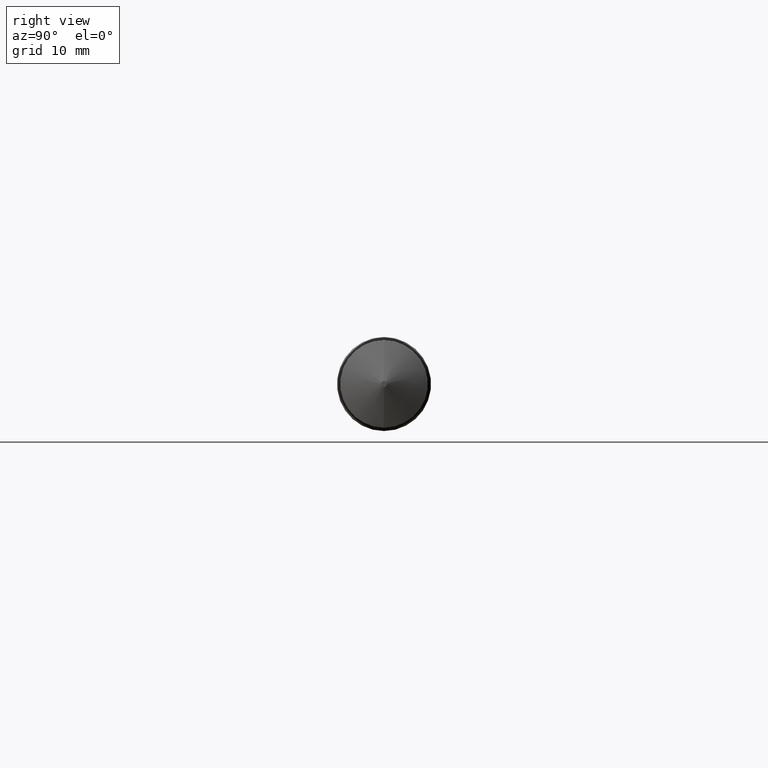
[diagram: clean part render]
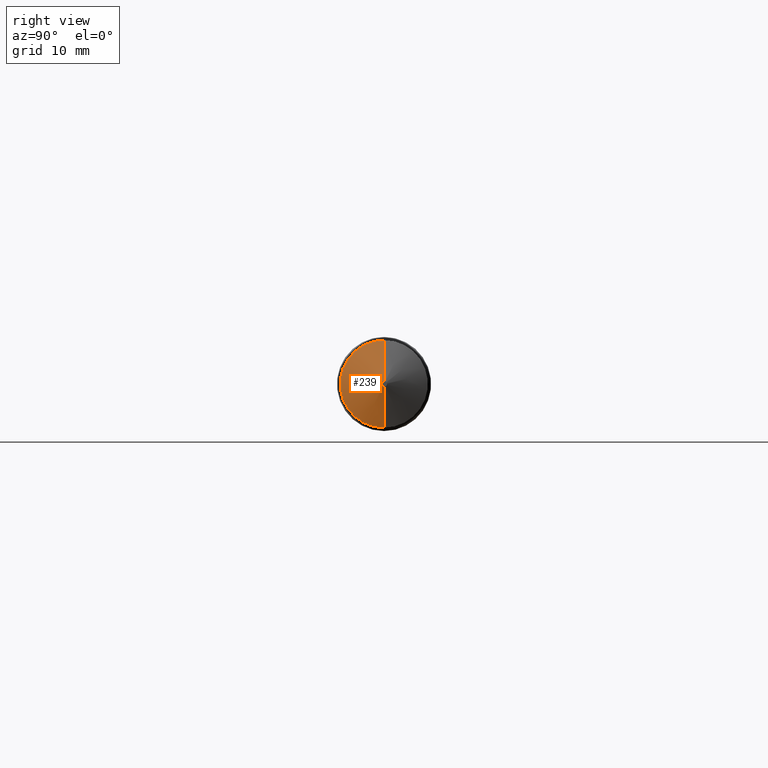
[diagram: same view with one face highlighted and labeled with its STEP entity id]
A machine part, right view. The second image highlights one B-rep face of the part: STEP entity #239.
In plain terms, the highlighted conical surface has half-angle 70 deg.
Its self-contained STEP definition (entity closure, byte-faithful):
#25 = ORIENTED_EDGE ( 'NONE', *, *, #258, .F. ) ;
#28 = ORIENTED_EDGE ( 'NONE', *, *, #355, .F. ) ;
#30 = EDGE_LOOP ( 'NONE', ( #25, #28, #324, #113 ) ) ;
#37 = DIRECTION ( 'NONE',  ( 1.000000000000000000, -0.000000000000000000, -0.000000000000000000 ) ) ;
#44 = CARTESIAN_POINT ( 'NONE',  ( 4.212598425196850016, 0.000000000000000000, 0.01750000000000052208 ) ) ;
#49 = VERTEX_POINT ( 'NONE', #206 ) ;
#54 = AXIS2_PLACEMENT_3D ( 'NONE', #213, #309, #74 ) ;
#59 = EDGE_CURVE ( 'NONE', #49, #168, #100, .T. ) ;
#74 = DIRECTION ( 'NONE',  ( 0.000000000000000000, 0.000000000000000000, 1.000000000000000000 ) ) ;
#76 = EDGE_CURVE ( 'NONE', #257, #49, #202, .T. ) ;
#89 = AXIS2_PLACEMENT_3D ( 'NONE', #151, #37, #94 ) ;
#93 = CARTESIAN_POINT ( 'NONE',  ( 4.212598425196850016, 0.000000000000000000, 0.01750000000000052208 ) ) ;
#94 = DIRECTION ( 'NONE',  ( 0.000000000000000000, 0.000000000000000000, -1.000000000000000000 ) ) ;
#100 = CIRCLE ( 'NONE', #89, 0.2565000000000005054 ) ;
#104 = VECTOR ( 'NONE', #152, 39.37007874015748854 ) ;
#113 = ORIENTED_EDGE ( 'NONE', *, *, #59, .T. ) ;
#125 = DIRECTION ( 'NONE',  ( 1.000000000000000000, -0.000000000000000000, -0.000000000000000000 ) ) ;
#128 = LINE ( 'NONE', #158, #329 ) ;
#137 = CIRCLE ( 'NONE', #165, 0.01750000000000052208 ) ;
#151 = CARTESIAN_POINT ( 'NONE',  ( 4.125609539207228948, 0.000000000000000000, 0.000000000000000000 ) ) ;
#152 = DIRECTION ( 'NONE',  ( -0.3420201433256671031, 0.000000000000000000, 0.9396926207859088720 ) ) ;
#158 = CARTESIAN_POINT ( 'NONE',  ( 4.212598425196850016, 2.143131898507931930E-18, -0.01750000000000052208 ) ) ;
#159 = FACE_OUTER_BOUND ( 'NONE', #30, .T. ) ;
#165 = AXIS2_PLACEMENT_3D ( 'NONE', #215, #125, #187 ) ;
#168 = VERTEX_POINT ( 'NONE', #175 ) ;
#175 = CARTESIAN_POINT ( 'NONE',  ( 4.125609539207228948, 3.141219039812967579E-17, -0.2565000000000005054 ) ) ;
#185 = CARTESIAN_POINT ( 'NONE',  ( 4.212598425196850016, 1.677766114831880656E-17, -0.01750000000000052208 ) ) ;
#187 = DIRECTION ( 'NONE',  ( 0.000000000000000000, 0.000000000000000000, -1.000000000000000000 ) ) ;
#197 = VERTEX_POINT ( 'NONE', #185 ) ;
#202 = LINE ( 'NONE', #93, #104 ) ;
#206 = CARTESIAN_POINT ( 'NONE',  ( 4.125609539207228948, 0.000000000000000000, 0.2565000000000005054 ) ) ;
#213 = CARTESIAN_POINT ( 'NONE',  ( 4.212598425196850016, 0.000000000000000000, 0.000000000000000000 ) ) ;
#215 = CARTESIAN_POINT ( 'NONE',  ( 4.212598425196850016, 0.000000000000000000, 0.000000000000000000 ) ) ;
#217 = CONICAL_SURFACE ( 'NONE', #54, 0.01750000000000052208, 1.221730476396032383 ) ;
#239 = ADVANCED_FACE ( 'NONE', ( #159 ), #217, .T. ) ;
#257 = VERTEX_POINT ( 'NONE', #44 ) ;
#258 = EDGE_CURVE ( 'NONE', #197, #168, #128, .T. ) ;
#309 = DIRECTION ( 'NONE',  ( -1.000000000000000000, 0.000000000000000000, 0.000000000000000000 ) ) ;
#324 = ORIENTED_EDGE ( 'NONE', *, *, #76, .T. ) ;
#329 = VECTOR ( 'NONE', #336, 39.37007874015748854 ) ;
#336 = DIRECTION ( 'NONE',  ( -0.3420201433256671031, 1.150791560227850763E-16, -0.9396926207859088720 ) ) ;
#355 = EDGE_CURVE ( 'NONE', #257, #197, #137, .T. ) ;